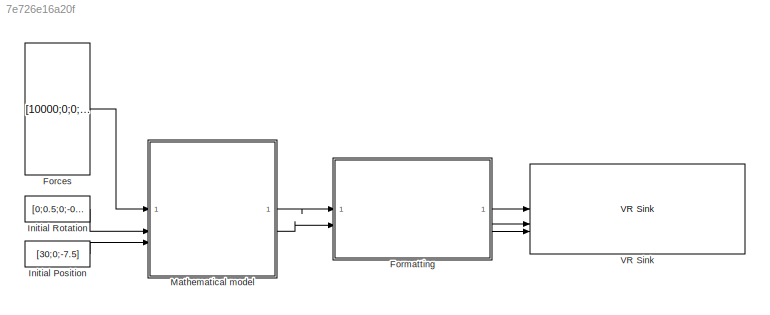
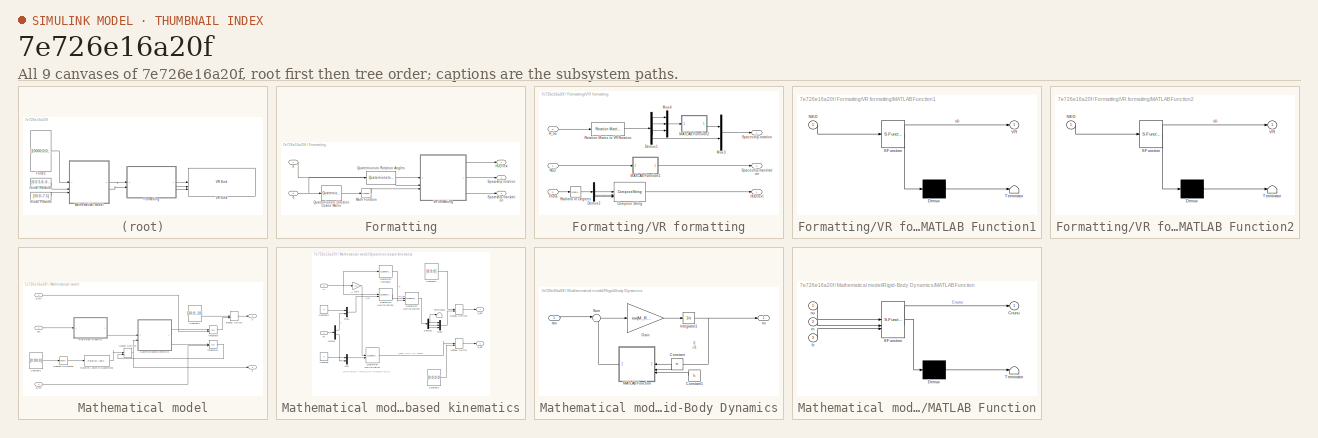
[diagram: thumbnail index - all 9 canvases of the model, root first then tree order]
MODEL slx_7e726e16a20f
KIND model
CONFIG AbsTol = auto
CONFIG EnableMultiTasking = on
CONFIG FixedStep = auto
CONFIG MaxStep = auto
CONFIG MinStep = auto
CONFIG RelTol = 1e-3
CONFIG SampleTimeConstraint = Unconstrained
CONFIG SolverName = ode45
CONFIG StartTime = 0.0
CONFIG StopTime = 120
BLOCK [Constant] Forces
  Value = [10000;0;0;1000;0;0]
  VectorParams1D = off
BLOCK [SubSystem] Formatting
BLOCK [Outport] Formatting/HUD.text
BLOCK [Math] Formatting/Math Function
  Operator = transpose
BLOCK [Reference] Formatting/Quaternions to Direction Cosine Matrix  REF=sharedtransform/Quaternions to 
Direction Cosine Matrix
  LibrarySourceBlock = aerolibtransform2/Quaternions to \nDirection Cosine Matrix
  SourceBlock = sharedtransform/Quaternions to \nDirection Cosine Matrix
  SourceType = Quaternion2DCM
BLOCK [Reference] Formatting/Quaternions to Rotation Angles  REF=sharedtransform/Quaternions to Rotation Angles
  AttributesFormatString = Rotation Order: %<rotationOrder>
  LibrarySourceBlock = aerolibtransform2/Quaternions to Rotation Angles
  SourceBlock = sharedtransform/Quaternions to Rotation Angles
  SourceType = Quat2Ang
BLOCK [Outport] Formatting/Spaceship.rotation
  Port = 2
BLOCK [Outport] Formatting/Spaceship.translation
  Port = 3
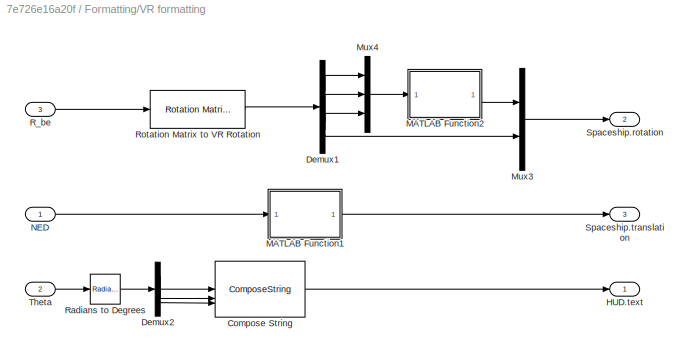
BLOCK [SubSystem] Formatting/VR formatting
BLOCK [ComposeString] Formatting/VR formatting/Compose String
  Format = 'Roll    : %7.2f deg\nPitch   : %7.2f deg\nYaw     : %7.2f deg'
BLOCK [Demux] Formatting/VR formatting/Demux1
BLOCK [Demux] Formatting/VR formatting/Demux2
  Outputs = 3
BLOCK [Outport] Formatting/VR formatting/HUD.text
BLOCK [SubSystem] Formatting/VR formatting/MATLAB Function1
  ErrorFcn = Stateflow.Translate.translate
  PermitHierarchicalResolution = ExplicitOnly
  SFBlockType = MATLAB Function
  TreatAsAtomicUnit = on
BLOCK [Demux] Formatting/VR formatting/MATLAB Function1/ Demux 
  Outputs = 1
BLOCK [S-Function] Formatting/VR formatting/MATLAB Function1/ SFunction 
  EnableBusSupport = on
  FunctionName = sf_sfun
  PortCounts = [1 2]
  SFcnIsStateOwnerBlock = off
  SFunctionDeploymentMode = off
  Tag = Stateflow S-Function 5
BLOCK [Terminator] Formatting/VR formatting/MATLAB Function1/ Terminator 
BLOCK [Inport] Formatting/VR formatting/MATLAB Function1/NED
BLOCK [Outport] Formatting/VR formatting/MATLAB Function1/VR
BLOCK [SubSystem] Formatting/VR formatting/MATLAB Function2
  ErrorFcn = Stateflow.Translate.translate
  PermitHierarchicalResolution = ExplicitOnly
  SFBlockType = MATLAB Function
  TreatAsAtomicUnit = on
BLOCK [Demux] Formatting/VR formatting/MATLAB Function2/ Demux 
  Outputs = 1
BLOCK [S-Function] Formatting/VR formatting/MATLAB Function2/ SFunction 
  EnableBusSupport = on
  FunctionName = sf_sfun
  PortCounts = [1 2]
  SFcnIsStateOwnerBlock = off
  SFunctionDeploymentMode = off
  Tag = Stateflow S-Function 6
BLOCK [Terminator] Formatting/VR formatting/MATLAB Function2/ Terminator 
BLOCK [Inport] Formatting/VR formatting/MATLAB Function2/NED
BLOCK [Outport] Formatting/VR formatting/MATLAB Function2/VR
BLOCK [Mux] Formatting/VR formatting/Mux3
  DisplayOption = bar
  Inputs = 2
BLOCK [Mux] Formatting/VR formatting/Mux4
  DisplayOption = bar
  Inputs = 3
BLOCK [Inport] Formatting/VR formatting/NED
BLOCK [Inport] Formatting/VR formatting/R_be
  Port = 3
BLOCK [Reference] Formatting/VR formatting/Radians to Degrees  REF=simulink_extras/Transformations/Radians
to Degrees
  SourceBlock = simulink_extras/Transformations/Radians\nto Degrees
  SourceType = RadiansToDegrees
BLOCK [Reference] Formatting/VR formatting/Rotation Matrix to VR Rotation  REF=vrlib/Utilities/Rotation Matrix
to VR Rotation
  SourceBlock = vrlib/Utilities/Rotation Matrix\nto VR Rotation
  SourceType = Rotation Matrix to VR Rotation
BLOCK [Outport] Formatting/VR formatting/Spaceship.rotation
  Port = 2
BLOCK [Outport] Formatting/VR formatting/Spaceship.translation
  Port = 3
BLOCK [Inport] Formatting/VR formatting/Theta
  Port = 2
BLOCK [Inport] Formatting/p
BLOCK [Inport] Formatting/q
  Port = 2
BLOCK [Constant] Initial Position
  Value = [30;0;-7.5]
BLOCK [Constant] Initial Rotation
  Value = [0;0.5;0;-0.5]
BLOCK [SubSystem] Mathematical model
BLOCK [Constant] Mathematical model/Constant2
  Value = [0;90;0]
  VectorParams1D = off
BLOCK [Constant] Mathematical model/Constant4
  Value = [30;0;-10]
  VectorParams1D = off
BLOCK [Reference] Mathematical model/Degrees to Radians  REF=simulink_extras/Transformations/Degrees to
Radians
  SourceBlock = simulink_extras/Transformations/Degrees to\nRadians
  SourceType = DegreesToRadians
BLOCK [Integrator] Mathematical model/Integrator
  InitialConditionSource = external
BLOCK [Integrator] Mathematical model/Integrator1
  InitialCondition = [1;0;0;0]
  InitialConditionSource = external
BLOCK [ManualSwitch] Mathematical model/Manual Switch
  CurrentSetting = 0
BLOCK [ManualSwitch] Mathematical model/Manual Switch1
  CurrentSetting = 0
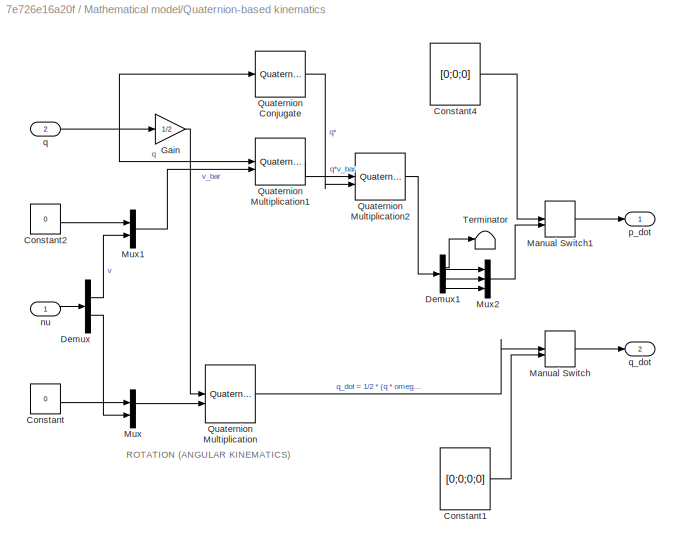
BLOCK [SubSystem] Mathematical model/Quaternion-based kinematics
  NameLocation = top
BLOCK [Constant] Mathematical model/Quaternion-based kinematics/Constant
  Value = 0
BLOCK [Constant] Mathematical model/Quaternion-based kinematics/Constant1
  Value = [0;0;0;0]
  VectorParams1D = off
BLOCK [Constant] Mathematical model/Quaternion-based kinematics/Constant2
  Value = 0
BLOCK [Constant] Mathematical model/Quaternion-based kinematics/Constant4
  Value = [0;0;0]
  VectorParams1D = off
BLOCK [Demux] Mathematical model/Quaternion-based kinematics/Demux
  Outputs = 2
BLOCK [Demux] Mathematical model/Quaternion-based kinematics/Demux1
BLOCK [Gain] Mathematical model/Quaternion-based kinematics/Gain
  Gain = 1/2
BLOCK [ManualSwitch] Mathematical model/Quaternion-based kinematics/Manual Switch
BLOCK [ManualSwitch] Mathematical model/Quaternion-based kinematics/Manual Switch1
  CurrentSetting = 0
BLOCK [Mux] Mathematical model/Quaternion-based kinematics/Mux
  DisplayOption = bar
  Inputs = 2
BLOCK [Mux] Mathematical model/Quaternion-based kinematics/Mux1
  DisplayOption = bar
  Inputs = 2
BLOCK [Mux] Mathematical model/Quaternion-based kinematics/Mux2
  DisplayOption = bar
  Inputs = 3
BLOCK [Reference] Mathematical model/Quaternion-based kinematics/Quaternion Conjugate  REF=aerolibutil/Quaternion
Conjugate
  SourceBlock = aerolibutil/Quaternion\nConjugate
  SourceType = Quaternion Conjugate
BLOCK [Reference] Mathematical model/Quaternion-based kinematics/Quaternion Multiplication  REF=aerolibutil/Quaternion
Multiplication
  SourceBlock = aerolibutil/Quaternion\nMultiplication
  SourceType = Quaternion Multiplication
BLOCK [Reference] Mathematical model/Quaternion-based kinematics/Quaternion Multiplication1  REF=aerolibutil/Quaternion
Multiplication
  SourceBlock = aerolibutil/Quaternion\nMultiplication
  SourceType = Quaternion Multiplication
BLOCK [Reference] Mathematical model/Quaternion-based kinematics/Quaternion Multiplication2  REF=aerolibutil/Quaternion
Multiplication
  SourceBlock = aerolibutil/Quaternion\nMultiplication
  SourceType = Quaternion Multiplication
BLOCK [Terminator] Mathematical model/Quaternion-based kinematics/Terminator
BLOCK [Inport] Mathematical model/Quaternion-based kinematics/nu
BLOCK [Outport] Mathematical model/Quaternion-based kinematics/p_dot
BLOCK [Inport] Mathematical model/Quaternion-based kinematics/q
  Port = 2
BLOCK [Outport] Mathematical model/Quaternion-based kinematics/q_dot
  Port = 2
BLOCK [SubSystem] Mathematical model/Rigid-Body Dynamics
BLOCK [Constant] Mathematical model/Rigid-Body Dynamics/Constant
  Value = m
BLOCK [Constant] Mathematical model/Rigid-Body Dynamics/Constant1
  Value = Ic
  VectorParams1D = off
BLOCK [Gain] Mathematical model/Rigid-Body Dynamics/Gain
  Gain = inv(M_RB)
  Multiplication = Matrix(K*u) (u vector)
BLOCK [Integrator] Mathematical model/Rigid-Body Dynamics/Integrator1
  InitialCondition = [0;0;0;0;0;0]
BLOCK [SubSystem] Mathematical model/Rigid-Body Dynamics/MATLAB Function
  ErrorFcn = Stateflow.Translate.translate
  PermitHierarchicalResolution = ExplicitOnly
  SFBlockType = MATLAB Function
  TreatAsAtomicUnit = on
BLOCK [Demux] Mathematical model/Rigid-Body Dynamics/MATLAB Function/ Demux 
  Outputs = 1
BLOCK [S-Function] Mathematical model/Rigid-Body Dynamics/MATLAB Function/ SFunction 
  EnableBusSupport = on
  FunctionName = sf_sfun
  PortCounts = [3 2]
  SFcnIsStateOwnerBlock = off
  SFunctionDeploymentMode = off
  Tag = Stateflow S-Function 2
BLOCK [Terminator] Mathematical model/Rigid-Body Dynamics/MATLAB Function/ Terminator 
BLOCK [Outport] Mathematical model/Rigid-Body Dynamics/MATLAB Function/Cnunu
BLOCK [Inport] Mathematical model/Rigid-Body Dynamics/MATLAB Function/Ic
  Port = 3
BLOCK [Inport] Mathematical model/Rigid-Body Dynamics/MATLAB Function/m
  Port = 2
BLOCK [Inport] Mathematical model/Rigid-Body Dynamics/MATLAB Function/nu
BLOCK [Sum] Mathematical model/Rigid-Body Dynamics/Sum
  Inputs = |+-
BLOCK [Outport] Mathematical model/Rigid-Body Dynamics/nu
BLOCK [Inport] Mathematical model/Rigid-Body Dynamics/tau
BLOCK [Reference] Mathematical model/Rotation Angles to Quaternions  REF=sharedtransform/Rotation Angles to Quaternions
  AttributesFormatString = Rotation Order: %<rotationOrder>
  LibrarySourceBlock = aerolibtransform2/Rotation Angles to Quaternions
  SourceBlock = sharedtransform/Rotation Angles to Quaternions
  SourceType = Ang2Quat
BLOCK [Outport] Mathematical model/p
BLOCK [Inport] Mathematical model/p_init
  Port = 3
BLOCK [Outport] Mathematical model/q
  Port = 2
BLOCK [Inport] Mathematical model/q_init
  Port = 2
BLOCK [Inport] Mathematical model/tau
BLOCK [Reference] VR Sink  REF=vrlib/VR Sink
  InstantiateOnLoad = on
  SourceBlock = vrlib/VR Sink
  SourceType = Virtual Reality Sink
ANNOTATION Mathematical model/Quaternion-based kinematics: ROTATION (ANGULAR KINEMATICS)
ANNOTATION Mathematical model/Rigid-Body Dynamics: $\nu$
LINE Forces:1 -> Mathematical model:1
LINE Formatting/Math Function:1 -> Formatting/VR formatting:3
LINE Formatting/Quaternions to Direction Cosine Matrix:1 -> Formatting/Math Function:1
LINE Formatting/Quaternions to Rotation Angles:1 -> Formatting/VR formatting:2
LINE Formatting/VR formatting/Compose String:1 -> Formatting/VR formatting/HUD.text:1
LINE Formatting/VR formatting/Demux1:1 -> Formatting/VR formatting/Mux4:1
LINE Formatting/VR formatting/Demux1:2 -> Formatting/VR formatting/Mux4:2
LINE Formatting/VR formatting/Demux1:3 -> Formatting/VR formatting/Mux4:3
LINE Formatting/VR formatting/Demux1:4 -> Formatting/VR formatting/Mux3:2
LINE Formatting/VR formatting/Demux2:1 -> Formatting/VR formatting/Compose String:1
LINE Formatting/VR formatting/Demux2:2 -> Formatting/VR formatting/Compose String:2
LINE Formatting/VR formatting/Demux2:3 -> Formatting/VR formatting/Compose String:3
LINE Formatting/VR formatting/MATLAB Function1:1 -> Formatting/VR formatting/Spaceship.translation:1
LINE Formatting/VR formatting/MATLAB Function2:1 -> Formatting/VR formatting/Mux3:1
LINE Formatting/VR formatting/Mux3:1 -> Formatting/VR formatting/Spaceship.rotation:1
LINE Formatting/VR formatting/Mux4:1 -> Formatting/VR formatting/MATLAB Function2:1
LINE Formatting/VR formatting/NED:1 -> Formatting/VR formatting/MATLAB Function1:1
LINE Formatting/VR formatting/R_be:1 -> Formatting/VR formatting/Rotation Matrix to VR Rotation:1
LINE Formatting/VR formatting/Radians to Degrees:1 -> Formatting/VR formatting/Demux2:1
LINE Formatting/VR formatting/Rotation Matrix to VR Rotation:1 -> Formatting/VR formatting/Demux1:1
LINE Formatting/VR formatting/Theta:1 -> Formatting/VR formatting/Radians to Degrees:1
LINE Formatting/VR formatting:1 -> Formatting/HUD.text:1
LINE Formatting/VR formatting:2 -> Formatting/Spaceship.rotation:1
LINE Formatting/VR formatting:3 -> Formatting/Spaceship.translation:1
LINE Formatting/p:1 -> Formatting/VR formatting:1
NET Formatting/q:1 -> Formatting/Quaternions to Direction Cosine Matrix:1, Formatting/Quaternions to Rotation Angles:1
LINE Formatting:1 -> VR Sink:1
LINE Formatting:2 -> VR Sink:2
LINE Formatting:3 -> VR Sink:3
LINE Initial Position:1 -> Mathematical model:3
LINE Initial Rotation:1 -> Mathematical model:2
LINE Mathematical model/Constant2:1 -> Mathematical model/Degrees to Radians:1
LINE Mathematical model/Constant4:1 -> Mathematical model/Manual Switch:1
LINE Mathematical model/Degrees to Radians:1 -> Mathematical model/Rotation Angles to Quaternions:1
LINE Mathematical model/Integrator1:1 -> Mathematical model/Manual Switch1:2
LINE Mathematical model/Integrator:1 -> Mathematical model/Manual Switch:2
NET Mathematical model/Manual Switch1:1 -> Mathematical model/Quaternion-based kinematics:2, Mathematical model/q:1
LINE Mathematical model/Manual Switch:1 -> Mathematical model/p:1
LINE Mathematical model/Quaternion-based kinematics/Constant1:1 -> Mathematical model/Quaternion-based kinematics/Manual Switch:2
LINE Mathematical model/Quaternion-based kinematics/Constant2:1 -> Mathematical model/Quaternion-based kinematics/Mux1:1
LINE Mathematical model/Quaternion-based kinematics/Constant4:1 -> Mathematical model/Quaternion-based kinematics/Manual Switch1:1
LINE Mathematical model/Quaternion-based kinematics/Constant:1 -> Mathematical model/Quaternion-based kinematics/Mux:1
LINE Mathematical model/Quaternion-based kinematics/Demux1:1 -> Mathematical model/Quaternion-based kinematics/Terminator:1
LINE Mathematical model/Quaternion-based kinematics/Demux1:2 -> Mathematical model/Quaternion-based kinematics/Mux2:1
LINE Mathematical model/Quaternion-based kinematics/Demux1:3 -> Mathematical model/Quaternion-based kinematics/Mux2:2
LINE Mathematical model/Quaternion-based kinematics/Demux1:4 -> Mathematical model/Quaternion-based kinematics/Mux2:3
LINE Mathematical model/Quaternion-based kinematics/Demux:1 -> Mathematical model/Quaternion-based kinematics/Mux1:2
LINE Mathematical model/Quaternion-based kinematics/Demux:2 -> Mathematical model/Quaternion-based kinematics/Mux:2
LINE Mathematical model/Quaternion-based kinematics/Gain:1 -> Mathematical model/Quaternion-based kinematics/Quaternion Multiplication:1
LINE Mathematical model/Quaternion-based kinematics/Manual Switch1:1 -> Mathematical model/Quaternion-based kinematics/p_dot:1
LINE Mathematical model/Quaternion-based kinematics/Manual Switch:1 -> Mathematical model/Quaternion-based kinematics/q_dot:1
LINE Mathematical model/Quaternion-based kinematics/Mux1:1 -> Mathematical model/Quaternion-based kinematics/Quaternion Multiplication1:2
LINE Mathematical model/Quaternion-based kinematics/Mux2:1 -> Mathematical model/Quaternion-based kinematics/Manual Switch1:2
LINE Mathematical model/Quaternion-based kinematics/Mux:1 -> Mathematical model/Quaternion-based kinematics/Quaternion Multiplication:2
LINE Mathematical model/Quaternion-based kinematics/Quaternion Conjugate:1 -> Mathematical model/Quaternion-based kinematics/Quaternion Multiplication2:2
LINE Mathematical model/Quaternion-based kinematics/Quaternion Multiplication1:1 -> Mathematical model/Quaternion-based kinematics/Quaternion Multiplication2:1
LINE Mathematical model/Quaternion-based kinematics/Quaternion Multiplication2:1 -> Mathematical model/Quaternion-based kinematics/Demux1:1
LINE Mathematical model/Quaternion-based kinematics/Quaternion Multiplication:1 -> Mathematical model/Quaternion-based kinematics/Manual Switch:1
LINE Mathematical model/Quaternion-based kinematics/nu:1 -> Mathematical model/Quaternion-based kinematics/Demux:1
NET Mathematical model/Quaternion-based kinematics/q:1 -> Mathematical model/Quaternion-based kinematics/Gain:1, Mathematical model/Quaternion-based kinematics/Quaternion Conjugate:1, Mathematical model/Quaternion-based kinematics/Quaternion Multiplication1:1
LINE Mathematical model/Quaternion-based kinematics:1 -> Mathematical model/Integrator:1
LINE Mathematical model/Quaternion-based kinematics:2 -> Mathematical model/Integrator1:1
LINE Mathematical model/Rigid-Body Dynamics/Constant1:1 -> Mathematical model/Rigid-Body Dynamics/MATLAB Function:3
LINE Mathematical model/Rigid-Body Dynamics/Constant:1 -> Mathematical model/Rigid-Body Dynamics/MATLAB Function:2
LINE Mathematical model/Rigid-Body Dynamics/Gain:1 -> Mathematical model/Rigid-Body Dynamics/Integrator1:1
NET Mathematical model/Rigid-Body Dynamics/Integrator1:1 -> Mathematical model/Rigid-Body Dynamics/MATLAB Function:1, Mathematical model/Rigid-Body Dynamics/nu:1
LINE Mathematical model/Rigid-Body Dynamics/MATLAB Function:1 -> Mathematical model/Rigid-Body Dynamics/Sum:2
LINE Mathematical model/Rigid-Body Dynamics/Sum:1 -> Mathematical model/Rigid-Body Dynamics/Gain:1
LINE Mathematical model/Rigid-Body Dynamics/tau:1 -> Mathematical model/Rigid-Body Dynamics/Sum:1
LINE Mathematical model/Rigid-Body Dynamics:1 -> Mathematical model/Quaternion-based kinematics:1
LINE Mathematical model/Rotation Angles to Quaternions:1 -> Mathematical model/Manual Switch1:1
LINE Mathematical model/p_init:1 -> Mathematical model/Integrator:2
LINE Mathematical model/q_init:1 -> Mathematical model/Integrator1:2
LINE Mathematical model/tau:1 -> Mathematical model/Rigid-Body Dynamics:1
LINE Mathematical model:1 -> Formatting:1
LINE Mathematical model:2 -> Formatting:2
note: NET lines group one-source signal fan-out (src -> all destinations, sorted); 1:1 wires keep LINE
CHART Formatting/VR formatting/MATLAB Function1 states=1 transitions=1
  STATE_LABEL 'eML_blk_kernel()'
  STATE_LABEL 'SCRIPT:\nfunction VR = NED2VR(NED)\n\nx = NED(1); % north\ny = NED(2); % east \nz = NED(3); % down\n\nVR = [ -y ; -z ; x ];\n'
CHART Formatting/VR formatting/MATLAB Function2 states=1 transitions=1
  STATE_LABEL 'eML_blk_kernel()'
  STATE_LABEL 'SCRIPT:\nfunction VR = NED2VR(NED)\n\nx = NED(1); % north\ny = NED(2); % east \nz = NED(3); % down\n\nVR = [ -y ; -z ; x ];\n'
CHART Mathematical model/Rigid-Body Dynamics/MATLAB Function states=1 transitions=1
  STATE_LABEL 'eML_blk_kernel()'
  STATE_LABEL 'SCRIPT:\nfunction Cnunu = fcn(nu,m,Ic)\n\nv = nu(1:3);  % linear velocities (expressed in the body frame)\nomega = nu(4:6); % angular velocities (expressed in the body frame)\n\n% Coriolis term\nCnunu = [ cross(omega,m*v) ; -cross(Ic*omega,omega) ];\n'
CHART  states=0 transitions=0
CHART  states=0 transitions=0
CHART  states=0 transitions=0
